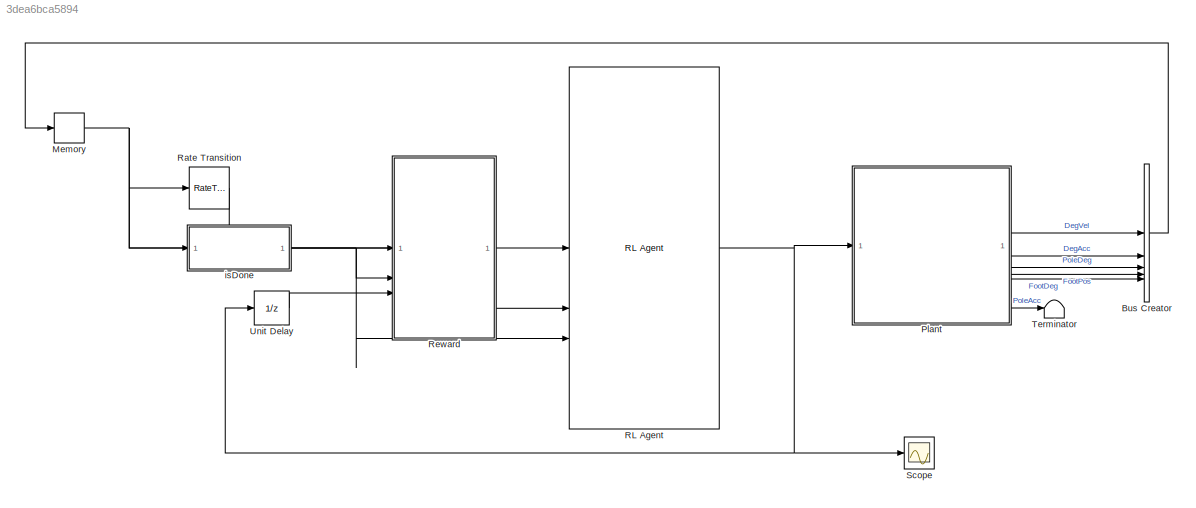
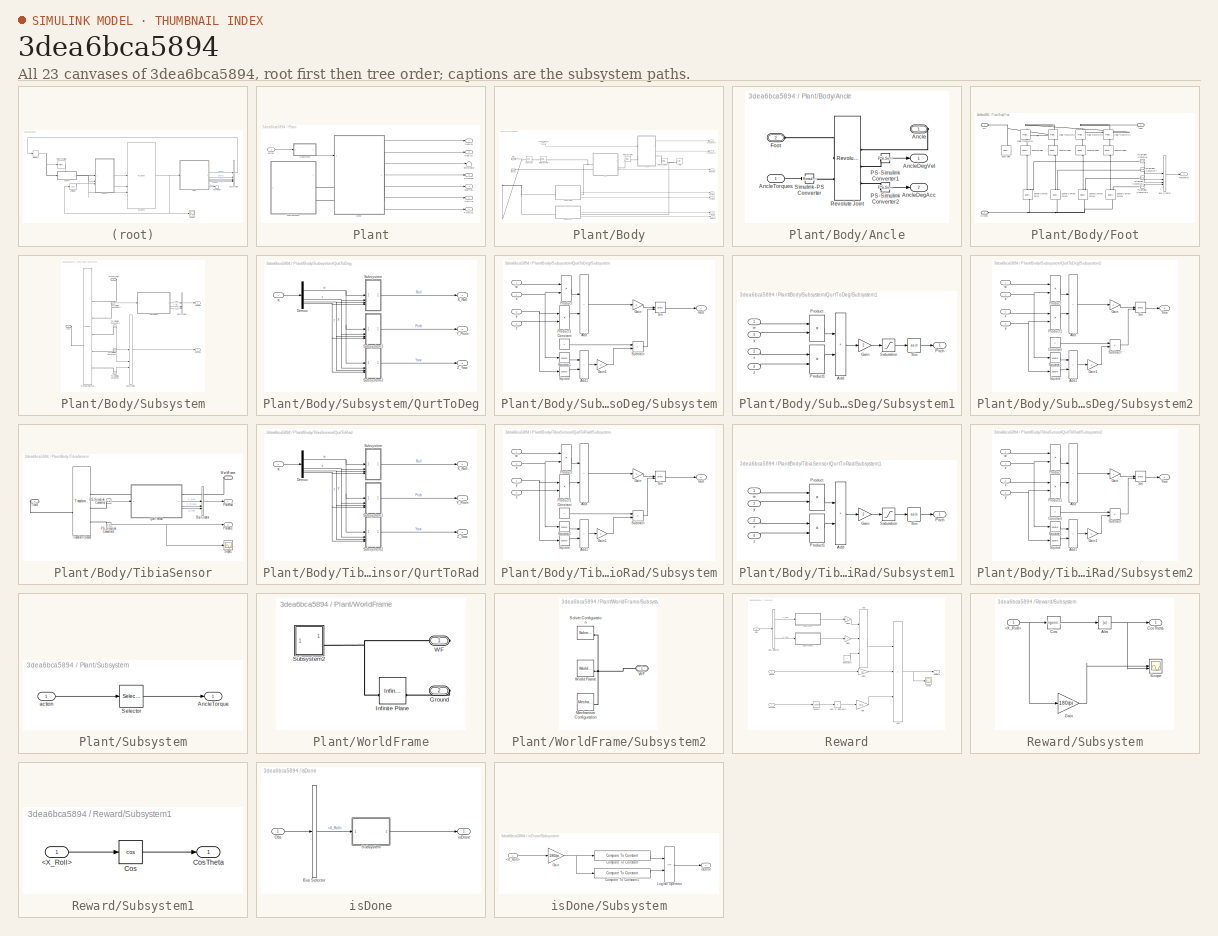
[diagram: thumbnail index - all 23 canvases of the model, root first then tree order]
MODEL slx_3dea6bca5894
KIND model
CONFIG AbsTol = 1e-3
CONFIG EnableMultiTasking = on
CONFIG FixedStep = auto
CONFIG MaxStep = auto
CONFIG MinStep = auto
CONFIG RelTol = 1e-3
CONFIG SampleTimeConstraint = Unconstrained
CONFIG SolverName = ode23s
CONFIG StartTime = 0.0
CONFIG StopTime = Tf
WORKSPACE source: mxarray member
WORKSPACE Max_Trq = 10
BLOCK [BusCreator] Bus Creator
  DisplayOption = bar
  InheritFromInputs = on
  Inputs = 5
BLOCK [Memory] Memory
  InitialCondition = InitialCondition
BLOCK [SubSystem] Plant
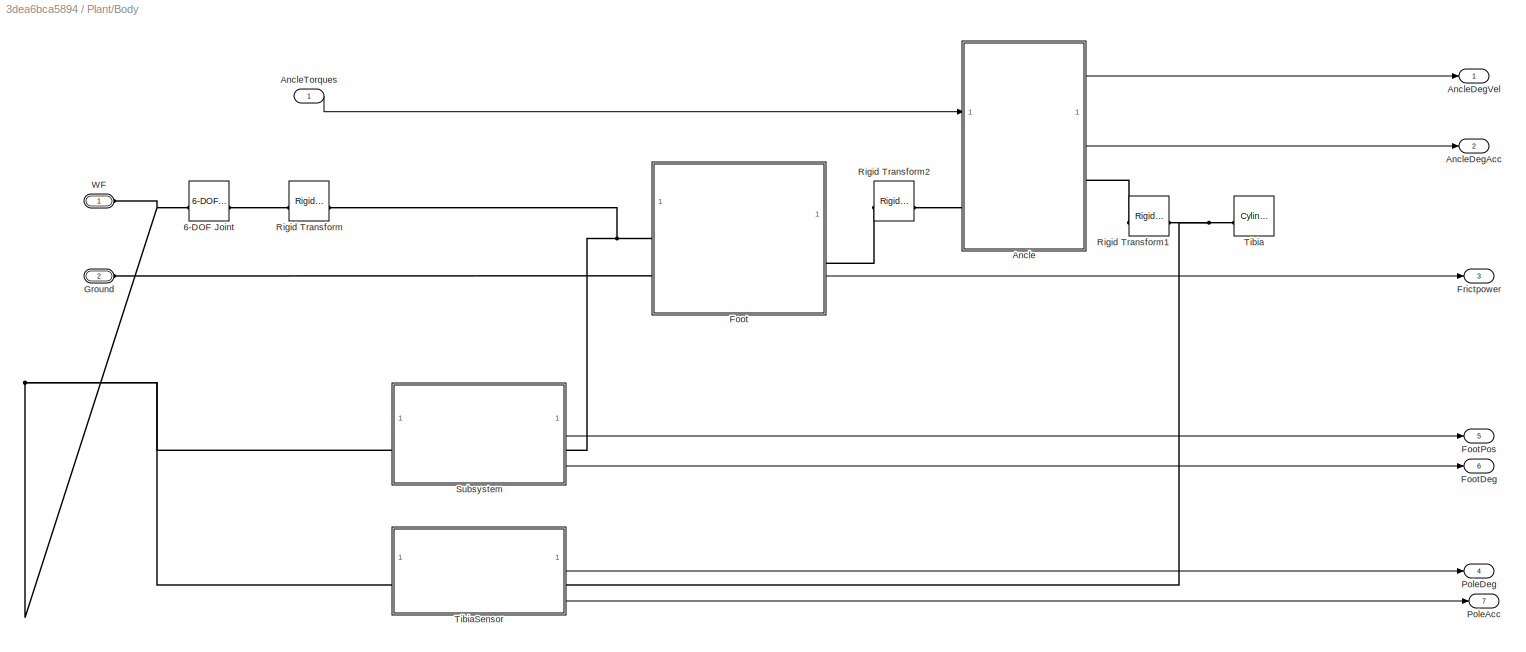
BLOCK [SubSystem] Plant/Body
BLOCK [Reference] Plant/Body/6-DOF Joint  REF=sm_lib/Joints/6-DOF Joint
  SourceBlock = sm_lib/Joints/6-DOF Joint
  SourceType = 6-DOF Joint
BLOCK [SubSystem] Plant/Body/Ancle
BLOCK [PMIOPort] Plant/Body/Ancle/Ancle
  Side = Right
BLOCK [Outport] Plant/Body/Ancle/AncleDegAcc
  Port = 2
BLOCK [Outport] Plant/Body/Ancle/AncleDegVel
BLOCK [Inport] Plant/Body/Ancle/AncleTorques
BLOCK [PMIOPort] Plant/Body/Ancle/Foot
  Port = 2
  Side = Left
BLOCK [Reference] Plant/Body/Ancle/PS-Simulink Converter1  REF=nesl_utility/PS-Simulink
Converter
  SourceBlock = nesl_utility/PS-Simulink\nConverter
  SourceType = PS-Simulink\nConverter
BLOCK [Reference] Plant/Body/Ancle/PS-Simulink Converter2  REF=nesl_utility/PS-Simulink
Converter
  SourceBlock = nesl_utility/PS-Simulink\nConverter
  SourceType = PS-Simulink\nConverter
BLOCK [Reference] Plant/Body/Ancle/Revolute Joint  REF=sm_lib/Joints/Revolute Joint
  SourceBlock = sm_lib/Joints/Revolute Joint
  SourceType = Revolute Joint
BLOCK [Reference] Plant/Body/Ancle/Simulink-PS Converter  REF=nesl_utility/Simulink-PS
Converter
  SourceBlock = nesl_utility/Simulink-PS\nConverter
  SourceType = Simulink-PS\nConverter
BLOCK [Outport] Plant/Body/AncleDegAcc
  Port = 2
BLOCK [Outport] Plant/Body/AncleDegVel
BLOCK [Inport] Plant/Body/AncleTorques
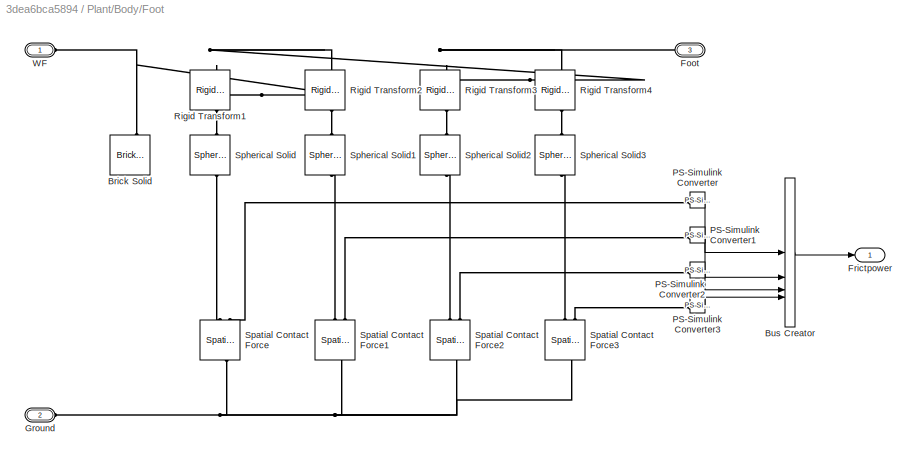
BLOCK [SubSystem] Plant/Body/Foot
  PortSchema = {"entries":[{"content":{"sides":[{"content":{"connectorIds":["LConn1","LConn2"]},"type":"ConnectorPlacement.EquallySpacedRectSide","uuid":"d5f97005-16a4-49fe-94e6-d10e7af0ba01"},{"content":{"connectorIds":["RConn1","Out1"],"side":"RIGHT"},"type":"ConnectorPlacement.EquallySpacedRectSide","uuid":"9f5dca56-320d-4a75-a909-fa3bd9aed5d9"},{"content":{"side":"TOP"},"type":"ConnectorPlacement.EquallySpac...<+243ch>
BLOCK [Reference] Plant/Body/Foot/Brick Solid  REF=sm_lib/Body Elements/Brick Solid
  SourceBlock = sm_lib/Body Elements/Brick Solid
  SourceType = Brick Solid
BLOCK [BusCreator] Plant/Body/Foot/Bus Creator
  DisplayOption = bar
  InheritFromInputs = on
  Inputs = 4
BLOCK [PMIOPort] Plant/Body/Foot/Foot
  Port = 3
  Side = Right
BLOCK [Outport] Plant/Body/Foot/Frictpower
BLOCK [PMIOPort] Plant/Body/Foot/Ground
  Port = 2
  Side = Left
BLOCK [Reference] Plant/Body/Foot/PS-Simulink Converter  REF=nesl_utility/PS-Simulink
Converter
  SourceBlock = nesl_utility/PS-Simulink\nConverter
  SourceType = PS-Simulink\nConverter
BLOCK [Reference] Plant/Body/Foot/PS-Simulink Converter1  REF=nesl_utility/PS-Simulink
Converter
  SourceBlock = nesl_utility/PS-Simulink\nConverter
  SourceType = PS-Simulink\nConverter
BLOCK [Reference] Plant/Body/Foot/PS-Simulink Converter2  REF=nesl_utility/PS-Simulink
Converter
  SourceBlock = nesl_utility/PS-Simulink\nConverter
  SourceType = PS-Simulink\nConverter
BLOCK [Reference] Plant/Body/Foot/PS-Simulink Converter3  REF=nesl_utility/PS-Simulink
Converter
  SourceBlock = nesl_utility/PS-Simulink\nConverter
  SourceType = PS-Simulink\nConverter
BLOCK [Reference] Plant/Body/Foot/Rigid Transform1  REF=sm_lib/Frames and
Transforms/Rigid
Transform
  NameLocation = right
  SourceBlock = sm_lib/Frames and\nTransforms/Rigid\nTransform
  SourceType = Rigid\nTransform
BLOCK [Reference] Plant/Body/Foot/Rigid Transform2  REF=sm_lib/Frames and
Transforms/Rigid
Transform
  NameLocation = right
  SourceBlock = sm_lib/Frames and\nTransforms/Rigid\nTransform
  SourceType = Rigid\nTransform
BLOCK [Reference] Plant/Body/Foot/Rigid Transform3  REF=sm_lib/Frames and
Transforms/Rigid
Transform
  NameLocation = right
  SourceBlock = sm_lib/Frames and\nTransforms/Rigid\nTransform
  SourceType = Rigid\nTransform
BLOCK [Reference] Plant/Body/Foot/Rigid Transform4  REF=sm_lib/Frames and
Transforms/Rigid
Transform
  NameLocation = right
  SourceBlock = sm_lib/Frames and\nTransforms/Rigid\nTransform
  SourceType = Rigid\nTransform
BLOCK [Reference] Plant/Body/Foot/Spatial Contact Force  REF=sm_lib/Forces and
Torques/Spatial
Contact Force
  NameLocation = right
  SourceBlock = sm_lib/Forces and\nTorques/Spatial\nContact Force
  SourceType = Spatial\nContact Force
BLOCK [Reference] Plant/Body/Foot/Spatial Contact Force1  REF=sm_lib/Forces and
Torques/Spatial
Contact Force
  NameLocation = right
  SourceBlock = sm_lib/Forces and\nTorques/Spatial\nContact Force
  SourceType = Spatial\nContact Force
BLOCK [Reference] Plant/Body/Foot/Spatial Contact Force2  REF=sm_lib/Forces and
Torques/Spatial
Contact Force
  NameLocation = right
  SourceBlock = sm_lib/Forces and\nTorques/Spatial\nContact Force
  SourceType = Spatial\nContact Force
BLOCK [Reference] Plant/Body/Foot/Spatial Contact Force3  REF=sm_lib/Forces and
Torques/Spatial
Contact Force
  NameLocation = right
  SourceBlock = sm_lib/Forces and\nTorques/Spatial\nContact Force
  SourceType = Spatial\nContact Force
BLOCK [Reference] Plant/Body/Foot/Spherical Solid  REF=sm_lib/Body Elements/Spherical Solid
  NameLocation = right
  SourceBlock = sm_lib/Body Elements/Spherical Solid
  SourceType = Spherical Solid
BLOCK [Reference] Plant/Body/Foot/Spherical Solid1  REF=sm_lib/Body Elements/Spherical Solid
  NameLocation = right
  SourceBlock = sm_lib/Body Elements/Spherical Solid
  SourceType = Spherical Solid
BLOCK [Reference] Plant/Body/Foot/Spherical Solid2  REF=sm_lib/Body Elements/Spherical Solid
  NameLocation = right
  SourceBlock = sm_lib/Body Elements/Spherical Solid
  SourceType = Spherical Solid
BLOCK [Reference] Plant/Body/Foot/Spherical Solid3  REF=sm_lib/Body Elements/Spherical Solid
  NameLocation = right
  SourceBlock = sm_lib/Body Elements/Spherical Solid
  SourceType = Spherical Solid
BLOCK [PMIOPort] Plant/Body/Foot/WF
  Side = Left
BLOCK [Outport] Plant/Body/FootDeg
  Port = 6
BLOCK [Outport] Plant/Body/FootPos
  Port = 5
BLOCK [Outport] Plant/Body/Frictpower
  Port = 3
BLOCK [PMIOPort] Plant/Body/Ground
  Port = 2
  Side = Left
BLOCK [Outport] Plant/Body/PoleAcc
  Port = 7
BLOCK [Outport] Plant/Body/PoleDeg
  Port = 4
BLOCK [Reference] Plant/Body/Rigid Transform  REF=sm_lib/Frames and
Transforms/Rigid
Transform
  SourceBlock = sm_lib/Frames and\nTransforms/Rigid\nTransform
  SourceType = Rigid\nTransform
BLOCK [Reference] Plant/Body/Rigid Transform1  REF=sm_lib/Frames and
Transforms/Rigid
Transform
  SourceBlock = sm_lib/Frames and\nTransforms/Rigid\nTransform
  SourceType = Rigid\nTransform
BLOCK [Reference] Plant/Body/Rigid Transform2  REF=sm_lib/Frames and
Transforms/Rigid
Transform
  SourceBlock = sm_lib/Frames and\nTransforms/Rigid\nTransform
  SourceType = Rigid\nTransform
BLOCK [SubSystem] Plant/Body/Subsystem
  PortSchema = {"entries":[{"content":{"sides":[{"content":{"connectorIds":["LConn1","Out1","Out2"]},"type":"ConnectorPlacement.EquallySpacedRectSide","uuid":"005876bf-2c81-461b-a6bd-4eb35ecb173d"},{"content":{"connectorIds":["RConn1"],"side":"RIGHT"},"type":"ConnectorPlacement.EquallySpacedRectSide","uuid":"4a0b3e71-b49d-4262-b788-0100c2880398"},{"content":{"side":"TOP"},"type":"ConnectorPlacement.EquallySpaced...<+241ch>
BLOCK [BusCreator] Plant/Body/Subsystem/Bus Creator
  DisplayOption = bar
  InheritFromInputs = on
  Inputs = 3
BLOCK [BusCreator] Plant/Body/Subsystem/Bus Creator1
  DisplayOption = bar
  InheritFromInputs = on
  Inputs = 3
BLOCK [Outport] Plant/Body/Subsystem/CartPos
BLOCK [PMIOPort] Plant/Body/Subsystem/Foot
  Side = Left
BLOCK [Outport] Plant/Body/Subsystem/FootDeg
  Port = 2
BLOCK [Reference] Plant/Body/Subsystem/PS-Simulink Converter  REF=nesl_utility/PS-Simulink
Converter
  SourceBlock = nesl_utility/PS-Simulink\nConverter
  SourceType = PS-Simulink\nConverter
BLOCK [Reference] Plant/Body/Subsystem/PS-Simulink Converter1  REF=nesl_utility/PS-Simulink
Converter
  SourceBlock = nesl_utility/PS-Simulink\nConverter
  SourceType = PS-Simulink\nConverter
BLOCK [Reference] Plant/Body/Subsystem/PS-Simulink Converter2  REF=nesl_utility/PS-Simulink
Converter
  SourceBlock = nesl_utility/PS-Simulink\nConverter
  SourceType = PS-Simulink\nConverter
BLOCK [Reference] Plant/Body/Subsystem/PS-Simulink Converter3  REF=nesl_utility/PS-Simulink
Converter
  SourceBlock = nesl_utility/PS-Simulink\nConverter
  SourceType = PS-Simulink\nConverter
BLOCK [SubSystem] Plant/Body/Subsystem/QurtToDeg
BLOCK [Demux] Plant/Body/Subsystem/QurtToDeg/Demux
BLOCK [SubSystem] Plant/Body/Subsystem/QurtToDeg/Subsystem
BLOCK [Sum] Plant/Body/Subsystem/QurtToDeg/Subsystem/Add
  IconShape = rectangular
BLOCK [Sum] Plant/Body/Subsystem/QurtToDeg/Subsystem/Add1
  IconShape = rectangular
BLOCK [Constant] Plant/Body/Subsystem/QurtToDeg/Subsystem/Constant
BLOCK [Gain] Plant/Body/Subsystem/QurtToDeg/Subsystem/Gain
  Gain = 2
BLOCK [Gain] Plant/Body/Subsystem/QurtToDeg/Subsystem/Gain1
  Gain = 2
BLOCK [Product] Plant/Body/Subsystem/QurtToDeg/Subsystem/Product
BLOCK [Product] Plant/Body/Subsystem/QurtToDeg/Subsystem/Product1
BLOCK [Outport] Plant/Body/Subsystem/QurtToDeg/Subsystem/Roll
BLOCK [Trigonometry] Plant/Body/Subsystem/QurtToDeg/Subsystem/Sin
  Operator = atan2
BLOCK [Math] Plant/Body/Subsystem/QurtToDeg/Subsystem/Square
  Operator = square
BLOCK [Math] Plant/Body/Subsystem/QurtToDeg/Subsystem/Square1
  Operator = square
BLOCK [Sum] Plant/Body/Subsystem/QurtToDeg/Subsystem/Subtract
  IconShape = rectangular
  Inputs = +-
BLOCK [Inport] Plant/Body/Subsystem/QurtToDeg/Subsystem/w
BLOCK [Inport] Plant/Body/Subsystem/QurtToDeg/Subsystem/x
  Port = 2
BLOCK [Inport] Plant/Body/Subsystem/QurtToDeg/Subsystem/y
  Port = 3
BLOCK [Inport] Plant/Body/Subsystem/QurtToDeg/Subsystem/z
  Port = 4
BLOCK [SubSystem] Plant/Body/Subsystem/QurtToDeg/Subsystem1
BLOCK [Sum] Plant/Body/Subsystem/QurtToDeg/Subsystem1/Add
  IconShape = rectangular
BLOCK [Gain] Plant/Body/Subsystem/QurtToDeg/Subsystem1/Gain
  Gain = 2
BLOCK [Outport] Plant/Body/Subsystem/QurtToDeg/Subsystem1/Pitch
BLOCK [Product] Plant/Body/Subsystem/QurtToDeg/Subsystem1/Product
BLOCK [Product] Plant/Body/Subsystem/QurtToDeg/Subsystem1/Product1
BLOCK [Saturate] Plant/Body/Subsystem/QurtToDeg/Subsystem1/Saturation
  LowerLimit = -1
  UpperLimit = 1
BLOCK [Trigonometry] Plant/Body/Subsystem/QurtToDeg/Subsystem1/Sin
  Operator = asin
BLOCK [Inport] Plant/Body/Subsystem/QurtToDeg/Subsystem1/w
BLOCK [Inport] Plant/Body/Subsystem/QurtToDeg/Subsystem1/x
  Port = 2
BLOCK [Inport] Plant/Body/Subsystem/QurtToDeg/Subsystem1/y
  Port = 3
BLOCK [Inport] Plant/Body/Subsystem/QurtToDeg/Subsystem1/z
  Port = 4
BLOCK [SubSystem] Plant/Body/Subsystem/QurtToDeg/Subsystem2
BLOCK [Sum] Plant/Body/Subsystem/QurtToDeg/Subsystem2/Add
  IconShape = rectangular
BLOCK [Sum] Plant/Body/Subsystem/QurtToDeg/Subsystem2/Add1
  IconShape = rectangular
BLOCK [Constant] Plant/Body/Subsystem/QurtToDeg/Subsystem2/Constant
BLOCK [Gain] Plant/Body/Subsystem/QurtToDeg/Subsystem2/Gain
  Gain = 2
BLOCK [Gain] Plant/Body/Subsystem/QurtToDeg/Subsystem2/Gain1
  Gain = 2
BLOCK [Product] Plant/Body/Subsystem/QurtToDeg/Subsystem2/Product
BLOCK [Product] Plant/Body/Subsystem/QurtToDeg/Subsystem2/Product1
BLOCK [Trigonometry] Plant/Body/Subsystem/QurtToDeg/Subsystem2/Sin
  Operator = atan2
BLOCK [Math] Plant/Body/Subsystem/QurtToDeg/Subsystem2/Square
  Operator = square
BLOCK [Math] Plant/Body/Subsystem/QurtToDeg/Subsystem2/Square1
  Operator = square
BLOCK [Sum] Plant/Body/Subsystem/QurtToDeg/Subsystem2/Subtract
  IconShape = rectangular
  Inputs = +-
BLOCK [Outport] Plant/Body/Subsystem/QurtToDeg/Subsystem2/Yaw
BLOCK [Inport] Plant/Body/Subsystem/QurtToDeg/Subsystem2/w
BLOCK [Inport] Plant/Body/Subsystem/QurtToDeg/Subsystem2/x
  Port = 2
BLOCK [Inport] Plant/Body/Subsystem/QurtToDeg/Subsystem2/y
  Port = 3
BLOCK [Inport] Plant/Body/Subsystem/QurtToDeg/Subsystem2/z
  Port = 4
BLOCK [Outport] Plant/Body/Subsystem/QurtToDeg/X_Roll
BLOCK [Outport] Plant/Body/Subsystem/QurtToDeg/Y_Pitch
  Port = 2
BLOCK [Outport] Plant/Body/Subsystem/QurtToDeg/Z_Yaw
  Port = 3
BLOCK [Inport] Plant/Body/Subsystem/QurtToDeg/q
BLOCK [Reference] Plant/Body/Subsystem/Transform Sensor  REF=sm_lib/Frames and
Transforms/Transform
Sensor
  SourceBlock = sm_lib/Frames and\nTransforms/Transform\nSensor
  SourceType = Transform\nSensor
BLOCK [PMIOPort] Plant/Body/Subsystem/WorldFrame
  Port = 2
  Side = Right
BLOCK [Reference] Plant/Body/Tibia  REF=sm_lib/Body Elements/Cylindrical Solid
  SourceBlock = sm_lib/Body Elements/Cylindrical Solid
  SourceType = Cylindrical Solid
BLOCK [SubSystem] Plant/Body/TibiaSensor
  PortSchema = {"entries":[{"content":{"sides":[{"content":{"connectorIds":["LConn1"]},"type":"ConnectorPlacement.EquallySpacedRectSide","uuid":"f3ebb2df-a6b1-403e-80ba-08f1b279a761"},{"content":{"connectorIds":["RConn1","Out1","Out2"],"side":"RIGHT"},"type":"ConnectorPlacement.EquallySpacedRectSide","uuid":"e83d7573-3688-496f-bb9e-845594156150"},{"content":{"side":"TOP"},"type":"ConnectorPlacement.EquallySpaced...<+241ch>
BLOCK [BusCreator] Plant/Body/TibiaSensor/Bus Creator
  DisplayOption = bar
  InheritFromInputs = on
  Inputs = 3
  NameLocation = right
BLOCK [Reference] Plant/Body/TibiaSensor/PS-Simulink Converter  REF=nesl_utility/PS-Simulink
Converter
  SourceBlock = nesl_utility/PS-Simulink\nConverter
  SourceType = PS-Simulink\nConverter
BLOCK [Reference] Plant/Body/TibiaSensor/PS-Simulink Converter2  REF=nesl_utility/PS-Simulink
Converter
  SourceBlock = nesl_utility/PS-Simulink\nConverter
  SourceType = PS-Simulink\nConverter
BLOCK [Outport] Plant/Body/TibiaSensor/PoleAcc
  Port = 2
BLOCK [Outport] Plant/Body/TibiaSensor/PoleRad
BLOCK [SubSystem] Plant/Body/TibiaSensor/QurtToRad
BLOCK [Demux] Plant/Body/TibiaSensor/QurtToRad/Demux
BLOCK [SubSystem] Plant/Body/TibiaSensor/QurtToRad/Subsystem
BLOCK [Sum] Plant/Body/TibiaSensor/QurtToRad/Subsystem/Add
  IconShape = rectangular
BLOCK [Sum] Plant/Body/TibiaSensor/QurtToRad/Subsystem/Add1
  IconShape = rectangular
BLOCK [Constant] Plant/Body/TibiaSensor/QurtToRad/Subsystem/Constant
BLOCK [Gain] Plant/Body/TibiaSensor/QurtToRad/Subsystem/Gain
  Gain = 2
BLOCK [Gain] Plant/Body/TibiaSensor/QurtToRad/Subsystem/Gain1
  Gain = 2
BLOCK [Product] Plant/Body/TibiaSensor/QurtToRad/Subsystem/Product
BLOCK [Product] Plant/Body/TibiaSensor/QurtToRad/Subsystem/Product1
BLOCK [Outport] Plant/Body/TibiaSensor/QurtToRad/Subsystem/Roll
BLOCK [Trigonometry] Plant/Body/TibiaSensor/QurtToRad/Subsystem/Sin
  Operator = atan2
BLOCK [Math] Plant/Body/TibiaSensor/QurtToRad/Subsystem/Square
  Operator = square
BLOCK [Math] Plant/Body/TibiaSensor/QurtToRad/Subsystem/Square1
  Operator = square
BLOCK [Sum] Plant/Body/TibiaSensor/QurtToRad/Subsystem/Subtract
  IconShape = rectangular
  Inputs = +-
BLOCK [Inport] Plant/Body/TibiaSensor/QurtToRad/Subsystem/w
BLOCK [Inport] Plant/Body/TibiaSensor/QurtToRad/Subsystem/x
  Port = 2
BLOCK [Inport] Plant/Body/TibiaSensor/QurtToRad/Subsystem/y
  Port = 3
BLOCK [Inport] Plant/Body/TibiaSensor/QurtToRad/Subsystem/z
  Port = 4
BLOCK [SubSystem] Plant/Body/TibiaSensor/QurtToRad/Subsystem1
BLOCK [Sum] Plant/Body/TibiaSensor/QurtToRad/Subsystem1/Add
  IconShape = rectangular
BLOCK [Gain] Plant/Body/TibiaSensor/QurtToRad/Subsystem1/Gain
  Gain = 2
BLOCK [Outport] Plant/Body/TibiaSensor/QurtToRad/Subsystem1/Pitch
BLOCK [Product] Plant/Body/TibiaSensor/QurtToRad/Subsystem1/Product
BLOCK [Product] Plant/Body/TibiaSensor/QurtToRad/Subsystem1/Product1
BLOCK [Saturate] Plant/Body/TibiaSensor/QurtToRad/Subsystem1/Saturation
  LowerLimit = -1
  UpperLimit = 1
BLOCK [Trigonometry] Plant/Body/TibiaSensor/QurtToRad/Subsystem1/Sin
  Operator = asin
BLOCK [Inport] Plant/Body/TibiaSensor/QurtToRad/Subsystem1/w
BLOCK [Inport] Plant/Body/TibiaSensor/QurtToRad/Subsystem1/x
  Port = 2
BLOCK [Inport] Plant/Body/TibiaSensor/QurtToRad/Subsystem1/y
  Port = 3
BLOCK [Inport] Plant/Body/TibiaSensor/QurtToRad/Subsystem1/z
  Port = 4
BLOCK [SubSystem] Plant/Body/TibiaSensor/QurtToRad/Subsystem2
BLOCK [Sum] Plant/Body/TibiaSensor/QurtToRad/Subsystem2/Add
  IconShape = rectangular
BLOCK [Sum] Plant/Body/TibiaSensor/QurtToRad/Subsystem2/Add1
  IconShape = rectangular
BLOCK [Constant] Plant/Body/TibiaSensor/QurtToRad/Subsystem2/Constant
BLOCK [Gain] Plant/Body/TibiaSensor/QurtToRad/Subsystem2/Gain
  Gain = 2
BLOCK [Gain] Plant/Body/TibiaSensor/QurtToRad/Subsystem2/Gain1
  Gain = 2
BLOCK [Product] Plant/Body/TibiaSensor/QurtToRad/Subsystem2/Product
BLOCK [Product] Plant/Body/TibiaSensor/QurtToRad/Subsystem2/Product1
BLOCK [Trigonometry] Plant/Body/TibiaSensor/QurtToRad/Subsystem2/Sin
  Operator = atan2
BLOCK [Math] Plant/Body/TibiaSensor/QurtToRad/Subsystem2/Square
  Operator = square
BLOCK [Math] Plant/Body/TibiaSensor/QurtToRad/Subsystem2/Square1
  Operator = square
BLOCK [Sum] Plant/Body/TibiaSensor/QurtToRad/Subsystem2/Subtract
  IconShape = rectangular
  Inputs = +-
BLOCK [Outport] Plant/Body/TibiaSensor/QurtToRad/Subsystem2/Yaw
BLOCK [Inport] Plant/Body/TibiaSensor/QurtToRad/Subsystem2/w
BLOCK [Inport] Plant/Body/TibiaSensor/QurtToRad/Subsystem2/x
  Port = 2
BLOCK [Inport] Plant/Body/TibiaSensor/QurtToRad/Subsystem2/y
  Port = 3
BLOCK [Inport] Plant/Body/TibiaSensor/QurtToRad/Subsystem2/z
  Port = 4
BLOCK [Outport] Plant/Body/TibiaSensor/QurtToRad/X_Roll
BLOCK [Outport] Plant/Body/TibiaSensor/QurtToRad/Y_Pitch
  Port = 2
BLOCK [Outport] Plant/Body/TibiaSensor/QurtToRad/Z_Yaw
  Port = 3
BLOCK [Inport] Plant/Body/TibiaSensor/QurtToRad/q
BLOCK [Scope] Plant/Body/TibiaSensor/Scope1
  ActiveDisplayYMaximum = 70.275451311498813
  ActiveDisplayYMinimum = -115.26464605117451
  DataLoggingVariableName = ScopeData3
  Floating = off
  GraphicalSettings = {"Style":{"BackgroundColor":[0.12941176470588237,0.12941176470588237,0.12941176470588237],"AxesColor":[0.07058823529411765,0.07058823529411765,0.07058823529411765],"LabelsColor":[0.8509803921568627,0.8509803921568627,0.8509803921568627],"PreserveColors":false,"Visible":[true],"LineStyle":["-"],"LineWidth":[1.5],"BarWidth":[0.9],"LineColor":["auto"],"LineFaceAlpha":[1],"LineEdgeAlpha":[1],"Marker":...<+2027ch>
  MultipleDisplayCache = [{"MaxYLimMag":115.26464605117451,"MaxYLimReal":70.275451311498813,"MinYLimMag":0,"MinYLimReal":-115.26464605117451,"PlotAsMagnitudePhase":false,"ShowGrid":true,"ShowLegend":false,"Title":"%<SignalLabel>","YLabel":""}]
  NumInputPorts = 1
  ScopeFrameLocation = window
  Visible = on
  WasSavedAsWebScope = on
  WindowPosition = [927.000000,126.000000,560.000000,420.000000,]
BLOCK [PMIOPort] Plant/Body/TibiaSensor/Tibia
  Port = 2
  Side = Right
BLOCK [Reference] Plant/Body/TibiaSensor/Transform Sensor  REF=sm_lib/Frames and
Transforms/Transform
Sensor
  SourceBlock = sm_lib/Frames and\nTransforms/Transform\nSensor
  SourceType = Transform\nSensor
BLOCK [PMIOPort] Plant/Body/TibiaSensor/WorldFrame
  Side = Left
BLOCK [PMIOPort] Plant/Body/WF
  Side = Left
BLOCK [Outport] Plant/CartVel
  Port = 5
BLOCK [Outport] Plant/DegAcc
  Port = 2
BLOCK [Outport] Plant/DegVel
BLOCK [Outport] Plant/FootPos
  Port = 4
BLOCK [Outport] Plant/PoleAcc
  Port = 6
BLOCK [Outport] Plant/PoleDeg
  Port = 3
BLOCK [SubSystem] Plant/Subsystem
BLOCK [Outport] Plant/Subsystem/AncleTorque
BLOCK [Selector] Plant/Subsystem/Selector
  IndexOptions = Index vector (dialog)
  Indices = 1
  InputPortWidth = 1
  OutputSizes = 1
BLOCK [Inport] Plant/Subsystem/action
BLOCK [Terminator] Plant/Terminator
BLOCK [SubSystem] Plant/WorldFrame
BLOCK [PMIOPort] Plant/WorldFrame/Ground
  Port = 2
  Side = Right
BLOCK [Reference] Plant/WorldFrame/Infinite Plane  REF=sm_lib/Curves and Surfaces/Infinite Plane
  SourceBlock = sm_lib/Curves and Surfaces/Infinite Plane
  SourceType = Infinite Plane
BLOCK [SubSystem] Plant/WorldFrame/Subsystem2
BLOCK [Reference] Plant/WorldFrame/Subsystem2/Mechanism Configuration  REF=sm_lib/Utilities/Mechanism
Configuration
  SourceBlock = sm_lib/Utilities/Mechanism\nConfiguration
  SourceType = Mechanism\nConfiguration
BLOCK [Reference] Plant/WorldFrame/Subsystem2/Solver Configuration  REF=nesl_utility/Solver
Configuration
  SourceBlock = nesl_utility/Solver\nConfiguration
  SourceType = Solver\nConfiguration
BLOCK [PMIOPort] Plant/WorldFrame/Subsystem2/WF
  Side = Right
BLOCK [Reference] Plant/WorldFrame/Subsystem2/World Frame  REF=sm_lib/Frames and
Transforms/World Frame
  SourceBlock = sm_lib/Frames and\nTransforms/World Frame
  SourceType = World Frame
BLOCK [PMIOPort] Plant/WorldFrame/WF
  Side = Right
BLOCK [Inport] Plant/action
BLOCK [Reference] RL Agent  REF=rllib/RL Agent
  SourceBlock = rllib/RL Agent
  SourceType = RL Agent
BLOCK [RateTransition] Rate Transition
  OutPortSampleTime = Ts
BLOCK [SubSystem] Reward
BLOCK [Sum] Reward/Add
  IconShape = rectangular
  Inputs = +++
BLOCK [Sum] Reward/Add2
  IconShape = rectangular
  Inputs = +++
BLOCK [BusSelector] Reward/Bus Selector
  OutputSignals = PoleDeg.X_Roll,FootDeg.X_Roll
BLOCK [Constant] Reward/Constant2
BLOCK [Gain] Reward/Gain
  Gain = -1e-6
BLOCK [Gain] Reward/Gain1
  Commented = on
BLOCK [Gain] Reward/Gain2
  Gain = -1
BLOCK [Gain] Reward/Gain4
  Gain = -10
BLOCK [Inport] Reward/Obs
BLOCK [Outport] Reward/Reward
BLOCK [Scope] Reward/Scope
  ActiveDisplayYMaximum = 1.0142496566239427
  ActiveDisplayYMinimum = 0.87075945587495107
  Floating = off
  GraphicalSettings = {"Style":{"BackgroundColor":[0.12941176470588237,0.12941176470588237,0.12941176470588237],"AxesColor":[0.07058823529411765,0.07058823529411765,0.07058823529411765],"LabelsColor":[0.8509803921568627,0.8509803921568627,0.8509803921568627],"PreserveColors":false,"Visible":[true],"LineStyle":["-"],"LineWidth":[1.5],"BarWidth":[0.9],"LineColor":["auto"],"LineFaceAlpha":[1],"LineEdgeAlpha":[1],"Marker":...<+1989ch>
  MultipleDisplayCache = [{"MaxYLimMag":1.0142496566239427,"MaxYLimReal":1.0142496566239427,"MinYLimMag":0.87075945587495107,"MinYLimReal":0.87075945587495107,"PlotAsMagnitudePhase":false,"ShowGrid":true,"ShowLegend":false,"Title":"%<SignalLabel>","YLabel":""}]
  NumInputPorts = 1
  ScopeFrameLocation = window
  WasSavedAsWebScope = on
  WindowPosition = [488.000000,222.000000,560.000000,420.000000,]
BLOCK [Math] Reward/Square
  Operator = square
BLOCK [SubSystem] Reward/Subsystem
BLOCK [Inport] Reward/Subsystem/<X_Roll>
BLOCK [Abs] Reward/Subsystem/Abs
  SaturateOnIntegerOverflow = off
BLOCK [Trigonometry] Reward/Subsystem/Cos
BLOCK [Outport] Reward/Subsystem/CosTheta
BLOCK [Gain] Reward/Subsystem/Gain
  Gain = 180/pi
BLOCK [Scope] Reward/Subsystem/Scope
  ActiveDisplayYMaximum = 0.20034172662394845
  ActiveDisplayYMinimum = -50.307423277470271
  DataLoggingVariableName = ScopeData6
  Floating = off
  GraphicalSettings = {"Style":{"BackgroundColor":[0.12941176470588237,0.12941176470588237,0.12941176470588237],"AxesColor":[0.07058823529411765,0.07058823529411765,0.07058823529411765],"LabelsColor":[0.8509803921568627,0.8509803921568627,0.8509803921568627],"PreserveColors":false,"Visible":[true,true],"LineStyle":["-","-"],"LineWidth":[1.5,1.5],"BarWidth":[0.9,0.9],"LineColor":["auto","auto"],"LineFaceAlpha":[1,1],"Li...<+2462ch>
  LayoutDimensionsString = [2,1]
  MultipleDisplayCache = [{"MaxYLimMag":50.307423277470271,"MaxYLimReal":0.20034172662394845,"MinYLimMag":0,"MinYLimReal":-50.307423277470271,"PlotAsMagnitudePhase":false,"ShowGrid":true,"ShowLegend":false,"Title":"%<SignalLabel>","YLabel":""},{"MaxYLimMag":0.78848105051063311,"MaxYLimReal":0.78848105051063311,"MinYLimMag":0.0063409682651909133,"MinYLimReal":0.0063409682651909133,"PlotAsMagnitudePhase":false,"ShowGrid":tr...<+60ch>
  NumInputPorts = 2
  ScopeFrameLocation = window
  WasSavedAsWebScope = on
  WindowPosition = [834.000000,203.000000,560.000000,420.000000,]
BLOCK [SubSystem] Reward/Subsystem1
  Commented = on
BLOCK [Inport] Reward/Subsystem1/<X_Roll>
BLOCK [Trigonometry] Reward/Subsystem1/Cos
  Operator = cos
BLOCK [Outport] Reward/Subsystem1/CosTheta
BLOCK [Sum] Reward/Sum of Elements
  IconShape = rectangular
  Inputs = +
BLOCK [Inport] Reward/Torques
  Port = 3
BLOCK [Inport] Reward/isDone
  Port = 2
BLOCK [Scope] Scope
  DataLoggingVariableName = ScopeData1
  Floating = off
  GraphicalSettings = {"GraphicalSettings":{"LegacySettings":true,"Style":{"Style":{"PlotType":"Auto"}}}}
  NumInputPorts = 1
  WasSavedAsWebScope = on
BLOCK [Terminator] Terminator
BLOCK [UnitDelay] Unit Delay
  HasFrameUpgradeWarning = on
  SampleTime = -1
BLOCK [SubSystem] isDone
BLOCK [BusSelector] isDone/Bus Selector
  OutputSignals = PoleDeg.X_Roll
BLOCK [Inport] isDone/Obs
BLOCK [SubSystem] isDone/Subsystem
BLOCK [Inport] isDone/Subsystem/<X_Roll>
BLOCK [Reference] isDone/Subsystem/Compare To Constant  REF=simulink/Logic and Bit
Operations/Compare
To Constant
  SourceBlock = simulink/Logic and Bit\nOperations/Compare\nTo Constant
  SourceType = Compare To Constant
BLOCK [Reference] isDone/Subsystem/Compare To Constant1  REF=simulink/Logic and Bit
Operations/Compare
To Constant
  SourceBlock = simulink/Logic and Bit\nOperations/Compare\nTo Constant
  SourceType = Compare To Constant
BLOCK [Gain] isDone/Subsystem/Gain
  Gain = 180/pi
BLOCK [Logic] isDone/Subsystem/Logical Operator
  AllPortsSameDT = off
  Operator = OR
  OutDataTypeStr = boolean
BLOCK [Outport] isDone/Subsystem/isDone
BLOCK [Outport] isDone/isDone
LINE Bus Creator:1 -> Memory:1
NET Memory:1 -> RL Agent:1, Rate Transition:1, isDone:1
LINE Plant/Body/Ancle/AncleTorques:1 -> Plant/Body/Ancle/Simulink-PS Converter:1
LINE Plant/Body/Ancle/PS-Simulink Converter1:1 -> Plant/Body/Ancle/AncleDegVel:1
LINE Plant/Body/Ancle/PS-Simulink Converter2:1 -> Plant/Body/Ancle/AncleDegAcc:1
LINE Plant/Body/Ancle:1 -> Plant/Body/AncleDegVel:1
LINE Plant/Body/Ancle:2 -> Plant/Body/AncleDegAcc:1
LINE Plant/Body/AncleTorques:1 -> Plant/Body/Ancle:1
LINE Plant/Body/Foot/Bus Creator:1 -> Plant/Body/Foot/Frictpower:1
LINE Plant/Body/Foot/PS-Simulink Converter1:1 -> Plant/Body/Foot/Bus Creator:2
LINE Plant/Body/Foot/PS-Simulink Converter2:1 -> Plant/Body/Foot/Bus Creator:3
LINE Plant/Body/Foot/PS-Simulink Converter3:1 -> Plant/Body/Foot/Bus Creator:4
LINE Plant/Body/Foot/PS-Simulink Converter:1 -> Plant/Body/Foot/Bus Creator:1
LINE Plant/Body/Foot:1 -> Plant/Body/Frictpower:1
LINE Plant/Body/Subsystem/Bus Creator1:1 -> Plant/Body/Subsystem/FootDeg:1
LINE Plant/Body/Subsystem/Bus Creator:1 -> Plant/Body/Subsystem/CartPos:1
LINE Plant/Body/Subsystem/PS-Simulink Converter1:1 -> Plant/Body/Subsystem/QurtToDeg:1
LINE Plant/Body/Subsystem/PS-Simulink Converter2:1 -> Plant/Body/Subsystem/Bus Creator:2
LINE Plant/Body/Subsystem/PS-Simulink Converter3:1 -> Plant/Body/Subsystem/Bus Creator:1
LINE Plant/Body/Subsystem/PS-Simulink Converter:1 -> Plant/Body/Subsystem/Bus Creator:3
NET Plant/Body/Subsystem/QurtToDeg/Demux:1 -> Plant/Body/Subsystem/QurtToDeg/Subsystem1:1, Plant/Body/Subsystem/QurtToDeg/Subsystem2:1, Plant/Body/Subsystem/QurtToDeg/Subsystem:1
NET Plant/Body/Subsystem/QurtToDeg/Demux:2 -> Plant/Body/Subsystem/QurtToDeg/Subsystem1:2, Plant/Body/Subsystem/QurtToDeg/Subsystem2:2, Plant/Body/Subsystem/QurtToDeg/Subsystem:2
NET Plant/Body/Subsystem/QurtToDeg/Demux:3 -> Plant/Body/Subsystem/QurtToDeg/Subsystem1:3, Plant/Body/Subsystem/QurtToDeg/Subsystem2:3, Plant/Body/Subsystem/QurtToDeg/Subsystem:3
NET Plant/Body/Subsystem/QurtToDeg/Demux:4 -> Plant/Body/Subsystem/QurtToDeg/Subsystem1:4, Plant/Body/Subsystem/QurtToDeg/Subsystem2:4, Plant/Body/Subsystem/QurtToDeg/Subsystem:4
LINE Plant/Body/Subsystem/QurtToDeg/Subsystem/Add1:1 -> Plant/Body/Subsystem/QurtToDeg/Subsystem/Gain1:1
LINE Plant/Body/Subsystem/QurtToDeg/Subsystem/Add:1 -> Plant/Body/Subsystem/QurtToDeg/Subsystem/Gain:1
LINE Plant/Body/Subsystem/QurtToDeg/Subsystem/Constant:1 -> Plant/Body/Subsystem/QurtToDeg/Subsystem/Subtract:1
LINE Plant/Body/Subsystem/QurtToDeg/Subsystem/Gain1:1 -> Plant/Body/Subsystem/QurtToDeg/Subsystem/Subtract:2
LINE Plant/Body/Subsystem/QurtToDeg/Subsystem/Gain:1 -> Plant/Body/Subsystem/QurtToDeg/Subsystem/Sin:1
LINE Plant/Body/Subsystem/QurtToDeg/Subsystem/Product1:1 -> Plant/Body/Subsystem/QurtToDeg/Subsystem/Add:2
LINE Plant/Body/Subsystem/QurtToDeg/Subsystem/Product:1 -> Plant/Body/Subsystem/QurtToDeg/Subsystem/Add:1
LINE Plant/Body/Subsystem/QurtToDeg/Subsystem/Sin:1 -> Plant/Body/Subsystem/QurtToDeg/Subsystem/Roll:1
LINE Plant/Body/Subsystem/QurtToDeg/Subsystem/Square1:1 -> Plant/Body/Subsystem/QurtToDeg/Subsystem/Add1:1
LINE Plant/Body/Subsystem/QurtToDeg/Subsystem/Square:1 -> Plant/Body/Subsystem/QurtToDeg/Subsystem/Add1:2
LINE Plant/Body/Subsystem/QurtToDeg/Subsystem/Subtract:1 -> Plant/Body/Subsystem/QurtToDeg/Subsystem/Sin:2
LINE Plant/Body/Subsystem/QurtToDeg/Subsystem/w:1 -> Plant/Body/Subsystem/QurtToDeg/Subsystem/Product:1
NET Plant/Body/Subsystem/QurtToDeg/Subsystem/x:1 -> Plant/Body/Subsystem/QurtToDeg/Subsystem/Product:2, Plant/Body/Subsystem/QurtToDeg/Subsystem/Square1:1
NET Plant/Body/Subsystem/QurtToDeg/Subsystem/y:1 -> Plant/Body/Subsystem/QurtToDeg/Subsystem/Product1:1, Plant/Body/Subsystem/QurtToDeg/Subsystem/Square:1
LINE Plant/Body/Subsystem/QurtToDeg/Subsystem/z:1 -> Plant/Body/Subsystem/QurtToDeg/Subsystem/Product1:2
LINE Plant/Body/Subsystem/QurtToDeg/Subsystem1/Add:1 -> Plant/Body/Subsystem/QurtToDeg/Subsystem1/Gain:1
LINE Plant/Body/Subsystem/QurtToDeg/Subsystem1/Gain:1 -> Plant/Body/Subsystem/QurtToDeg/Subsystem1/Saturation:1
LINE Plant/Body/Subsystem/QurtToDeg/Subsystem1/Product1:1 -> Plant/Body/Subsystem/QurtToDeg/Subsystem1/Add:2
LINE Plant/Body/Subsystem/QurtToDeg/Subsystem1/Product:1 -> Plant/Body/Subsystem/QurtToDeg/Subsystem1/Add:1
LINE Plant/Body/Subsystem/QurtToDeg/Subsystem1/Saturation:1 -> Plant/Body/Subsystem/QurtToDeg/Subsystem1/Sin:1
LINE Plant/Body/Subsystem/QurtToDeg/Subsystem1/Sin:1 -> Plant/Body/Subsystem/QurtToDeg/Subsystem1/Pitch:1
LINE Plant/Body/Subsystem/QurtToDeg/Subsystem1/w:1 -> Plant/Body/Subsystem/QurtToDeg/Subsystem1/Product:1
LINE Plant/Body/Subsystem/QurtToDeg/Subsystem1/x:1 -> Plant/Body/Subsystem/QurtToDeg/Subsystem1/Product1:1
LINE Plant/Body/Subsystem/QurtToDeg/Subsystem1/y:1 -> Plant/Body/Subsystem/QurtToDeg/Subsystem1/Product:2
LINE Plant/Body/Subsystem/QurtToDeg/Subsystem1/z:1 -> Plant/Body/Subsystem/QurtToDeg/Subsystem1/Product1:2
LINE Plant/Body/Subsystem/QurtToDeg/Subsystem1:1 -> Plant/Body/Subsystem/QurtToDeg/Y_Pitch:1
LINE Plant/Body/Subsystem/QurtToDeg/Subsystem2/Add1:1 -> Plant/Body/Subsystem/QurtToDeg/Subsystem2/Gain1:1
LINE Plant/Body/Subsystem/QurtToDeg/Subsystem2/Add:1 -> Plant/Body/Subsystem/QurtToDeg/Subsystem2/Gain:1
LINE Plant/Body/Subsystem/QurtToDeg/Subsystem2/Constant:1 -> Plant/Body/Subsystem/QurtToDeg/Subsystem2/Subtract:1
LINE Plant/Body/Subsystem/QurtToDeg/Subsystem2/Gain1:1 -> Plant/Body/Subsystem/QurtToDeg/Subsystem2/Subtract:2
LINE Plant/Body/Subsystem/QurtToDeg/Subsystem2/Gain:1 -> Plant/Body/Subsystem/QurtToDeg/Subsystem2/Sin:1
LINE Plant/Body/Subsystem/QurtToDeg/Subsystem2/Product1:1 -> Plant/Body/Subsystem/QurtToDeg/Subsystem2/Add:2
LINE Plant/Body/Subsystem/QurtToDeg/Subsystem2/Product:1 -> Plant/Body/Subsystem/QurtToDeg/Subsystem2/Add:1
LINE Plant/Body/Subsystem/QurtToDeg/Subsystem2/Sin:1 -> Plant/Body/Subsystem/QurtToDeg/Subsystem2/Yaw:1
LINE Plant/Body/Subsystem/QurtToDeg/Subsystem2/Square1:1 -> Plant/Body/Subsystem/QurtToDeg/Subsystem2/Add1:1
LINE Plant/Body/Subsystem/QurtToDeg/Subsystem2/Square:1 -> Plant/Body/Subsystem/QurtToDeg/Subsystem2/Add1:2
LINE Plant/Body/Subsystem/QurtToDeg/Subsystem2/Subtract:1 -> Plant/Body/Subsystem/QurtToDeg/Subsystem2/Sin:2
LINE Plant/Body/Subsystem/QurtToDeg/Subsystem2/w:1 -> Plant/Body/Subsystem/QurtToDeg/Subsystem2/Product:1
LINE Plant/Body/Subsystem/QurtToDeg/Subsystem2/x:1 -> Plant/Body/Subsystem/QurtToDeg/Subsystem2/Product1:1
NET Plant/Body/Subsystem/QurtToDeg/Subsystem2/y:1 -> Plant/Body/Subsystem/QurtToDeg/Subsystem2/Product1:2, Plant/Body/Subsystem/QurtToDeg/Subsystem2/Square:1
NET Plant/Body/Subsystem/QurtToDeg/Subsystem2/z:1 -> Plant/Body/Subsystem/QurtToDeg/Subsystem2/Product:2, Plant/Body/Subsystem/QurtToDeg/Subsystem2/Square1:1
LINE Plant/Body/Subsystem/QurtToDeg/Subsystem2:1 -> Plant/Body/Subsystem/QurtToDeg/Z_Yaw:1
LINE Plant/Body/Subsystem/QurtToDeg/Subsystem:1 -> Plant/Body/Subsystem/QurtToDeg/X_Roll:1
LINE Plant/Body/Subsystem/QurtToDeg/q:1 -> Plant/Body/Subsystem/QurtToDeg/Demux:1
LINE Plant/Body/Subsystem/QurtToDeg:1 -> Plant/Body/Subsystem/Bus Creator1:1
LINE Plant/Body/Subsystem/QurtToDeg:2 -> Plant/Body/Subsystem/Bus Creator1:2
LINE Plant/Body/Subsystem/QurtToDeg:3 -> Plant/Body/Subsystem/Bus Creator1:3
LINE Plant/Body/Subsystem:1 -> Plant/Body/FootPos:1
LINE Plant/Body/Subsystem:2 -> Plant/Body/FootDeg:1
LINE Plant/Body/TibiaSensor/Bus Creator:1 -> Plant/Body/TibiaSensor/PoleRad:1
NET Plant/Body/TibiaSensor/PS-Simulink Converter2:1 -> Plant/Body/TibiaSensor/PoleAcc:1, Plant/Body/TibiaSensor/Scope1:1
LINE Plant/Body/TibiaSensor/PS-Simulink Converter:1 -> Plant/Body/TibiaSensor/QurtToRad:1
NET Plant/Body/TibiaSensor/QurtToRad/Demux:1 -> Plant/Body/TibiaSensor/QurtToRad/Subsystem1:1, Plant/Body/TibiaSensor/QurtToRad/Subsystem2:1, Plant/Body/TibiaSensor/QurtToRad/Subsystem:1
NET Plant/Body/TibiaSensor/QurtToRad/Demux:2 -> Plant/Body/TibiaSensor/QurtToRad/Subsystem1:2, Plant/Body/TibiaSensor/QurtToRad/Subsystem2:2, Plant/Body/TibiaSensor/QurtToRad/Subsystem:2
NET Plant/Body/TibiaSensor/QurtToRad/Demux:3 -> Plant/Body/TibiaSensor/QurtToRad/Subsystem1:3, Plant/Body/TibiaSensor/QurtToRad/Subsystem2:3, Plant/Body/TibiaSensor/QurtToRad/Subsystem:3
NET Plant/Body/TibiaSensor/QurtToRad/Demux:4 -> Plant/Body/TibiaSensor/QurtToRad/Subsystem1:4, Plant/Body/TibiaSensor/QurtToRad/Subsystem2:4, Plant/Body/TibiaSensor/QurtToRad/Subsystem:4
LINE Plant/Body/TibiaSensor/QurtToRad/Subsystem/Add1:1 -> Plant/Body/TibiaSensor/QurtToRad/Subsystem/Gain1:1
LINE Plant/Body/TibiaSensor/QurtToRad/Subsystem/Add:1 -> Plant/Body/TibiaSensor/QurtToRad/Subsystem/Gain:1
LINE Plant/Body/TibiaSensor/QurtToRad/Subsystem/Constant:1 -> Plant/Body/TibiaSensor/QurtToRad/Subsystem/Subtract:1
LINE Plant/Body/TibiaSensor/QurtToRad/Subsystem/Gain1:1 -> Plant/Body/TibiaSensor/QurtToRad/Subsystem/Subtract:2
LINE Plant/Body/TibiaSensor/QurtToRad/Subsystem/Gain:1 -> Plant/Body/TibiaSensor/QurtToRad/Subsystem/Sin:1
LINE Plant/Body/TibiaSensor/QurtToRad/Subsystem/Product1:1 -> Plant/Body/TibiaSensor/QurtToRad/Subsystem/Add:2
LINE Plant/Body/TibiaSensor/QurtToRad/Subsystem/Product:1 -> Plant/Body/TibiaSensor/QurtToRad/Subsystem/Add:1
LINE Plant/Body/TibiaSensor/QurtToRad/Subsystem/Sin:1 -> Plant/Body/TibiaSensor/QurtToRad/Subsystem/Roll:1
LINE Plant/Body/TibiaSensor/QurtToRad/Subsystem/Square1:1 -> Plant/Body/TibiaSensor/QurtToRad/Subsystem/Add1:1
LINE Plant/Body/TibiaSensor/QurtToRad/Subsystem/Square:1 -> Plant/Body/TibiaSensor/QurtToRad/Subsystem/Add1:2
LINE Plant/Body/TibiaSensor/QurtToRad/Subsystem/Subtract:1 -> Plant/Body/TibiaSensor/QurtToRad/Subsystem/Sin:2
LINE Plant/Body/TibiaSensor/QurtToRad/Subsystem/w:1 -> Plant/Body/TibiaSensor/QurtToRad/Subsystem/Product:1
NET Plant/Body/TibiaSensor/QurtToRad/Subsystem/x:1 -> Plant/Body/TibiaSensor/QurtToRad/Subsystem/Product:2, Plant/Body/TibiaSensor/QurtToRad/Subsystem/Square1:1
NET Plant/Body/TibiaSensor/QurtToRad/Subsystem/y:1 -> Plant/Body/TibiaSensor/QurtToRad/Subsystem/Product1:1, Plant/Body/TibiaSensor/QurtToRad/Subsystem/Square:1
LINE Plant/Body/TibiaSensor/QurtToRad/Subsystem/z:1 -> Plant/Body/TibiaSensor/QurtToRad/Subsystem/Product1:2
LINE Plant/Body/TibiaSensor/QurtToRad/Subsystem1/Add:1 -> Plant/Body/TibiaSensor/QurtToRad/Subsystem1/Gain:1
LINE Plant/Body/TibiaSensor/QurtToRad/Subsystem1/Gain:1 -> Plant/Body/TibiaSensor/QurtToRad/Subsystem1/Saturation:1
LINE Plant/Body/TibiaSensor/QurtToRad/Subsystem1/Product1:1 -> Plant/Body/TibiaSensor/QurtToRad/Subsystem1/Add:2
LINE Plant/Body/TibiaSensor/QurtToRad/Subsystem1/Product:1 -> Plant/Body/TibiaSensor/QurtToRad/Subsystem1/Add:1
LINE Plant/Body/TibiaSensor/QurtToRad/Subsystem1/Saturation:1 -> Plant/Body/TibiaSensor/QurtToRad/Subsystem1/Sin:1
LINE Plant/Body/TibiaSensor/QurtToRad/Subsystem1/Sin:1 -> Plant/Body/TibiaSensor/QurtToRad/Subsystem1/Pitch:1
LINE Plant/Body/TibiaSensor/QurtToRad/Subsystem1/w:1 -> Plant/Body/TibiaSensor/QurtToRad/Subsystem1/Product:1
LINE Plant/Body/TibiaSensor/QurtToRad/Subsystem1/x:1 -> Plant/Body/TibiaSensor/QurtToRad/Subsystem1/Product1:1
LINE Plant/Body/TibiaSensor/QurtToRad/Subsystem1/y:1 -> Plant/Body/TibiaSensor/QurtToRad/Subsystem1/Product:2
LINE Plant/Body/TibiaSensor/QurtToRad/Subsystem1/z:1 -> Plant/Body/TibiaSensor/QurtToRad/Subsystem1/Product1:2
LINE Plant/Body/TibiaSensor/QurtToRad/Subsystem1:1 -> Plant/Body/TibiaSensor/QurtToRad/Y_Pitch:1
LINE Plant/Body/TibiaSensor/QurtToRad/Subsystem2/Add1:1 -> Plant/Body/TibiaSensor/QurtToRad/Subsystem2/Gain1:1
LINE Plant/Body/TibiaSensor/QurtToRad/Subsystem2/Add:1 -> Plant/Body/TibiaSensor/QurtToRad/Subsystem2/Gain:1
LINE Plant/Body/TibiaSensor/QurtToRad/Subsystem2/Constant:1 -> Plant/Body/TibiaSensor/QurtToRad/Subsystem2/Subtract:1
LINE Plant/Body/TibiaSensor/QurtToRad/Subsystem2/Gain1:1 -> Plant/Body/TibiaSensor/QurtToRad/Subsystem2/Subtract:2
LINE Plant/Body/TibiaSensor/QurtToRad/Subsystem2/Gain:1 -> Plant/Body/TibiaSensor/QurtToRad/Subsystem2/Sin:1
LINE Plant/Body/TibiaSensor/QurtToRad/Subsystem2/Product1:1 -> Plant/Body/TibiaSensor/QurtToRad/Subsystem2/Add:2
LINE Plant/Body/TibiaSensor/QurtToRad/Subsystem2/Product:1 -> Plant/Body/TibiaSensor/QurtToRad/Subsystem2/Add:1
LINE Plant/Body/TibiaSensor/QurtToRad/Subsystem2/Sin:1 -> Plant/Body/TibiaSensor/QurtToRad/Subsystem2/Yaw:1
LINE Plant/Body/TibiaSensor/QurtToRad/Subsystem2/Square1:1 -> Plant/Body/TibiaSensor/QurtToRad/Subsystem2/Add1:1
LINE Plant/Body/TibiaSensor/QurtToRad/Subsystem2/Square:1 -> Plant/Body/TibiaSensor/QurtToRad/Subsystem2/Add1:2
LINE Plant/Body/TibiaSensor/QurtToRad/Subsystem2/Subtract:1 -> Plant/Body/TibiaSensor/QurtToRad/Subsystem2/Sin:2
LINE Plant/Body/TibiaSensor/QurtToRad/Subsystem2/w:1 -> Plant/Body/TibiaSensor/QurtToRad/Subsystem2/Product:1
LINE Plant/Body/TibiaSensor/QurtToRad/Subsystem2/x:1 -> Plant/Body/TibiaSensor/QurtToRad/Subsystem2/Product1:1
NET Plant/Body/TibiaSensor/QurtToRad/Subsystem2/y:1 -> Plant/Body/TibiaSensor/QurtToRad/Subsystem2/Product1:2, Plant/Body/TibiaSensor/QurtToRad/Subsystem2/Square:1
NET Plant/Body/TibiaSensor/QurtToRad/Subsystem2/z:1 -> Plant/Body/TibiaSensor/QurtToRad/Subsystem2/Product:2, Plant/Body/TibiaSensor/QurtToRad/Subsystem2/Square1:1
LINE Plant/Body/TibiaSensor/QurtToRad/Subsystem2:1 -> Plant/Body/TibiaSensor/QurtToRad/Z_Yaw:1
LINE Plant/Body/TibiaSensor/QurtToRad/Subsystem:1 -> Plant/Body/TibiaSensor/QurtToRad/X_Roll:1
LINE Plant/Body/TibiaSensor/QurtToRad/q:1 -> Plant/Body/TibiaSensor/QurtToRad/Demux:1
LINE Plant/Body/TibiaSensor/QurtToRad:1 -> Plant/Body/TibiaSensor/Bus Creator:1
LINE Plant/Body/TibiaSensor/QurtToRad:2 -> Plant/Body/TibiaSensor/Bus Creator:2
LINE Plant/Body/TibiaSensor/QurtToRad:3 -> Plant/Body/TibiaSensor/Bus Creator:3
LINE Plant/Body/TibiaSensor:1 -> Plant/Body/PoleDeg:1
LINE Plant/Body/TibiaSensor:2 -> Plant/Body/PoleAcc:1
LINE Plant/Body:1 -> Plant/DegVel:1
LINE Plant/Body:2 -> Plant/DegAcc:1
LINE Plant/Body:3 -> Plant/Terminator:1
LINE Plant/Body:4 -> Plant/PoleDeg:1
LINE Plant/Body:5 -> Plant/FootPos:1
LINE Plant/Body:6 -> Plant/CartVel:1
LINE Plant/Body:7 -> Plant/PoleAcc:1
LINE Plant/Subsystem/Selector:1 -> Plant/Subsystem/AncleTorque:1
LINE Plant/Subsystem/action:1 -> Plant/Subsystem/Selector:1
LINE Plant/Subsystem:1 -> Plant/Body:1
LINE Plant/action:1 -> Plant/Subsystem:1
LINE Plant:1 -> Bus Creator:1
LINE Plant:2 -> Bus Creator:2
LINE Plant:3 -> Bus Creator:3
LINE Plant:4 -> Bus Creator:4
LINE Plant:5 -> Bus Creator:5
LINE Plant:6 -> Terminator:1
NET RL Agent:1 -> Plant:1, Scope:1, Unit Delay:1
LINE Rate Transition:1 -> Reward:1
NET Reward/Add2:1 -> Reward/Reward:1, Reward/Scope:1
LINE Reward/Add:1 -> Reward/Add2:1
LINE Reward/Bus Selector:1 -> Reward/Subsystem:1
LINE Reward/Bus Selector:2 -> Reward/Subsystem1:1
LINE Reward/Constant2:1 -> Reward/Add:3
LINE Reward/Gain1:1 -> Reward/Add:2
LINE Reward/Gain2:1 -> Reward/Add:1
LINE Reward/Gain4:1 -> Reward/Add2:2
LINE Reward/Gain:1 -> Reward/Add2:3
LINE Reward/Obs:1 -> Reward/Bus Selector:1
LINE Reward/Square:1 -> Reward/Sum of Elements:1
NET Reward/Subsystem/<X_Roll>:1 -> Reward/Subsystem/Cos:1, Reward/Subsystem/Gain:1
NET Reward/Subsystem/Abs:1 -> Reward/Subsystem/CosTheta:1, Reward/Subsystem/Scope:2
LINE Reward/Subsystem/Cos:1 -> Reward/Subsystem/Abs:1
LINE Reward/Subsystem/Gain:1 -> Reward/Subsystem/Scope:1
LINE Reward/Subsystem1/<X_Roll>:1 -> Reward/Subsystem1/Cos:1
LINE Reward/Subsystem1/Cos:1 -> Reward/Subsystem1/CosTheta:1
LINE Reward/Subsystem1:1 -> Reward/Gain1:1
LINE Reward/Subsystem:1 -> Reward/Gain2:1
LINE Reward/Sum of Elements:1 -> Reward/Gain:1
LINE Reward/Torques:1 -> Reward/Square:1
LINE Reward/isDone:1 -> Reward/Gain4:1
LINE Reward:1 -> RL Agent:2
LINE Unit Delay:1 -> Reward:3
LINE isDone/Bus Selector:1 -> isDone/Subsystem:1
LINE isDone/Obs:1 -> isDone/Bus Selector:1
LINE isDone/Subsystem/<X_Roll>:1 -> isDone/Subsystem/Gain:1
LINE isDone/Subsystem/Compare To Constant1:1 -> isDone/Subsystem/Logical Operator:2
LINE isDone/Subsystem/Compare To Constant:1 -> isDone/Subsystem/Logical Operator:1
NET isDone/Subsystem/Gain:1 -> isDone/Subsystem/Compare To Constant1:1, isDone/Subsystem/Compare To Constant:1
LINE isDone/Subsystem/Logical Operator:1 -> isDone/Subsystem/isDone:1
LINE isDone/Subsystem:1 -> isDone/isDone:1
NET isDone:1 -> RL Agent:3, Reward:2
PNET net1: Plant/Body/6-DOF Joint:LConn1 -- Plant/Body/Subsystem:RConn1 -- Plant/Body/TibiaSensor:LConn1 -- Plant/Body/WF:RConn1
PLINE Plant/Body/6-DOF Joint:RConn1 -- Plant/Body/Rigid Transform:LConn1
PLINE Plant/Body/Ancle/Ancle:RConn1 -- Plant/Body/Ancle/Revolute Joint:RConn1
PLINE Plant/Body/Ancle/Foot:RConn1 -- Plant/Body/Ancle/Revolute Joint:LConn1
PLINE Plant/Body/Ancle/PS-Simulink Converter1:LConn1 -- Plant/Body/Ancle/Revolute Joint:RConn2
PLINE Plant/Body/Ancle/PS-Simulink Converter2:LConn1 -- Plant/Body/Ancle/Revolute Joint:RConn3
PLINE Plant/Body/Ancle/Revolute Joint:LConn2 -- Plant/Body/Ancle/Simulink-PS Converter:RConn1
PLINE Plant/Body/Ancle:LConn1 -- Plant/Body/Rigid Transform2:RConn1
PLINE Plant/Body/Ancle:RConn1 -- Plant/Body/Rigid Transform1:LConn1
PNET net2: Plant/Body/Foot/Brick Solid:RConn1 -- Plant/Body/Foot/Foot:RConn1 -- Plant/Body/Foot/Rigid Transform1:LConn1 -- Plant/Body/Foot/Rigid Transform2:LConn1 -- Plant/Body/Foot/Rigid Transform3:LConn1 -- Plant/Body/Foot/Rigid Transform4:LConn1 -- Plant/Body/Foot/WF:RConn1
PNET net3: Plant/Body/Foot/Ground:RConn1 -- Plant/Body/Foot/Spatial Contact Force1:LConn1 -- Plant/Body/Foot/Spatial Contact Force2:LConn1 -- Plant/Body/Foot/Spatial Contact Force3:LConn1 -- Plant/Body/Foot/Spatial Contact Force:LConn1
PLINE Plant/Body/Foot/PS-Simulink Converter1:LConn1 -- Plant/Body/Foot/Spatial Contact Force1:RConn2
PLINE Plant/Body/Foot/PS-Simulink Converter2:LConn1 -- Plant/Body/Foot/Spatial Contact Force2:RConn2
PLINE Plant/Body/Foot/PS-Simulink Converter3:LConn1 -- Plant/Body/Foot/Spatial Contact Force3:RConn2
PLINE Plant/Body/Foot/PS-Simulink Converter:LConn1 -- Plant/Body/Foot/Spatial Contact Force:RConn2
PLINE Plant/Body/Foot/Rigid Transform1:RConn1 -- Plant/Body/Foot/Spherical Solid:RConn1
PLINE Plant/Body/Foot/Rigid Transform2:RConn1 -- Plant/Body/Foot/Spherical Solid1:RConn1
PLINE Plant/Body/Foot/Rigid Transform3:RConn1 -- Plant/Body/Foot/Spherical Solid2:RConn1
PLINE Plant/Body/Foot/Rigid Transform4:RConn1 -- Plant/Body/Foot/Spherical Solid3:RConn1
PLINE Plant/Body/Foot/Spatial Contact Force1:RConn1 -- Plant/Body/Foot/Spherical Solid1:LConn1
PLINE Plant/Body/Foot/Spatial Contact Force2:RConn1 -- Plant/Body/Foot/Spherical Solid2:LConn1
PLINE Plant/Body/Foot/Spatial Contact Force3:RConn1 -- Plant/Body/Foot/Spherical Solid3:LConn1
PLINE Plant/Body/Foot/Spatial Contact Force:RConn1 -- Plant/Body/Foot/Spherical Solid:LConn1
PNET net4: Plant/Body/Foot:LConn1 -- Plant/Body/Rigid Transform:RConn1 -- Plant/Body/Subsystem:LConn1
PLINE Plant/Body/Foot:LConn2 -- Plant/Body/Ground:RConn1
PLINE Plant/Body/Foot:RConn1 -- Plant/Body/Rigid Transform2:LConn1
PNET net5: Plant/Body/Rigid Transform1:RConn1 -- Plant/Body/Tibia:RConn1 -- Plant/Body/TibiaSensor:RConn1
PLINE Plant/Body/Subsystem/Foot:RConn1 -- Plant/Body/Subsystem/Transform Sensor:LConn1
PLINE Plant/Body/Subsystem/PS-Simulink Converter1:LConn1 -- Plant/Body/Subsystem/Transform Sensor:RConn2
PLINE Plant/Body/Subsystem/PS-Simulink Converter2:LConn1 -- Plant/Body/Subsystem/Transform Sensor:RConn4
PLINE Plant/Body/Subsystem/PS-Simulink Converter3:LConn1 -- Plant/Body/Subsystem/Transform Sensor:RConn3
PLINE Plant/Body/Subsystem/PS-Simulink Converter:LConn1 -- Plant/Body/Subsystem/Transform Sensor:RConn5
PLINE Plant/Body/Subsystem/Transform Sensor:RConn1 -- Plant/Body/Subsystem/WorldFrame:RConn1
PLINE Plant/Body/TibiaSensor/PS-Simulink Converter2:LConn1 -- Plant/Body/TibiaSensor/Transform Sensor:RConn3
PLINE Plant/Body/TibiaSensor/PS-Simulink Converter:LConn1 -- Plant/Body/TibiaSensor/Transform Sensor:RConn2
PLINE Plant/Body/TibiaSensor/Tibia:RConn1 -- Plant/Body/TibiaSensor/Transform Sensor:LConn1
PLINE Plant/Body/TibiaSensor/Transform Sensor:RConn1 -- Plant/Body/TibiaSensor/WorldFrame:RConn1
PLINE Plant/Body:LConn1 -- Plant/WorldFrame:RConn1
PLINE Plant/Body:LConn2 -- Plant/WorldFrame:RConn2
PLINE Plant/WorldFrame/Ground:RConn1 -- Plant/WorldFrame/Infinite Plane:RConn1
PNET net6: Plant/WorldFrame/Infinite Plane:LConn1 -- Plant/WorldFrame/Subsystem2:RConn1 -- Plant/WorldFrame/WF:RConn1
PNET net7: Plant/WorldFrame/Subsystem2/Mechanism Configuration:RConn1 -- Plant/WorldFrame/Subsystem2/Solver Configuration:RConn1 -- Plant/WorldFrame/Subsystem2/WF:RConn1 -- Plant/WorldFrame/Subsystem2/World Frame:RConn1
note: NET lines group one-source signal fan-out (src -> all destinations, sorted); 1:1 wires keep LINE; PNET lines group multi-terminal physical nets as a canonical sorted terminal list (undirected conserving connections); 2-terminal nets keep the pairwise PLINE form
